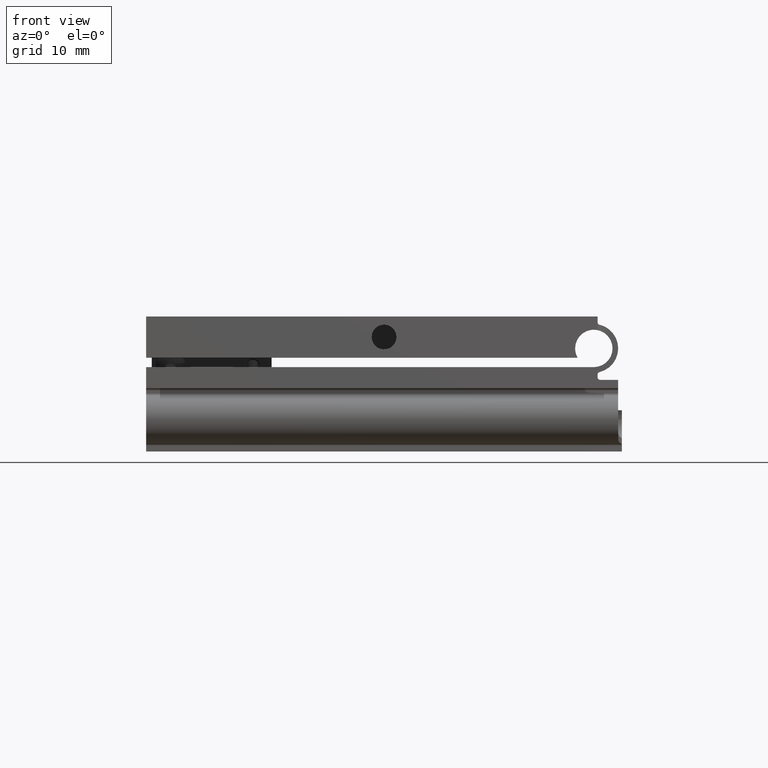
[diagram: clean part render]
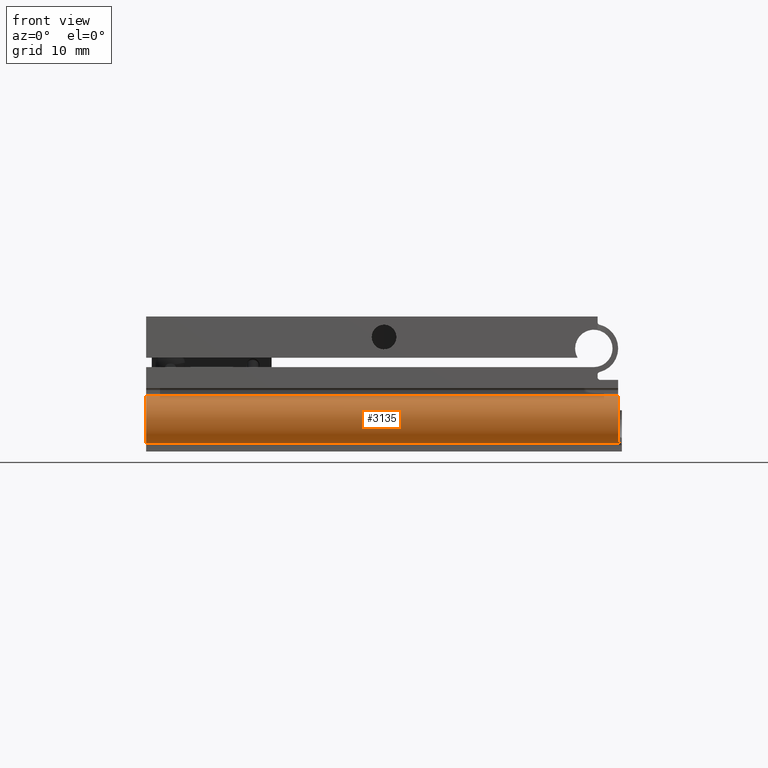
[diagram: same view with one face highlighted and labeled with its STEP entity id]
A machine part, front view. The second image highlights one B-rep face of the part: STEP entity #3135.
In plain terms, the highlighted cylindrical surface (edge-blend (fillet) strip) has radius 3.25 mm, axis along (1, -0, 0).
Its self-contained STEP definition (entity closure, byte-faithful):
#731 = CARTESIAN_POINT ( 'NONE',  ( 29.81023702222723415, -7.459889454570994616, -31.25000000000001421 ) ) ;
#737 = CYLINDRICAL_SURFACE ( 'NONE', #6212, 3.249999999999999556 ) ;
#2343 = ORIENTED_EDGE ( 'NONE', *, *, #8732, .T. ) ;
#2553 = ORIENTED_EDGE ( 'NONE', *, *, #11737, .T. ) ;
#2787 = CARTESIAN_POINT ( 'NONE',  ( 29.99999999999997158, -7.311737691489923918, -31.25000000000002132 ) ) ;
#2832 = B_SPLINE_CURVE_WITH_KNOTS ( 'NONE', 3,
 ( #7759, #12944, #13152, #3757, #731, #12142 ),
 .UNSPECIFIED., .F., .F.,
 ( 4, 2, 4 ),
 ( 0.000000000000000000, 0.0007118922461806587512, 0.001423784492361317502 ),
 .UNSPECIFIED. ) ;
#3001 = CARTESIAN_POINT ( 'NONE',  ( 28.76736111111111427, -1.591890292413145280, 31.75000000000000000 ) ) ;
#3044 = VECTOR ( 'NONE', #11092, 1000.000000000000000 ) ;
#3135 = ADVANCED_FACE ( 'NONE', ( #8910 ), #737, .T. ) ;
#3344 = ORIENTED_EDGE ( 'NONE', *, *, #13262, .T. ) ;
#3757 = CARTESIAN_POINT ( 'NONE',  ( 29.60716026191370531, -7.584533274308146389, -31.27141869312925238 ) ) ;
#4204 = VECTOR ( 'NONE', #6126, 1000.000000000000000 ) ;
#4729 = VERTEX_POINT ( 'NONE', #10278 ) ;
#5944 = CARTESIAN_POINT ( 'NONE',  ( 28.00000000000000355, -4.749999999999999112, -31.25000000000000000 ) ) ;
#6126 = DIRECTION ( 'NONE',  ( 0.000000000000000000, 0.000000000000000000, 1.000000000000000000 ) ) ;
#6212 = AXIS2_PLACEMENT_3D ( 'NONE', #10050, #10775, #9835 ) ;
#6415 = CIRCLE ( 'NONE', #6638, 3.249999999999999556 ) ;
#6428 = CARTESIAN_POINT ( 'NONE',  ( 28.76736111111111427, -7.908109707586853609, 31.75000000000000000 ) ) ;
#6638 = AXIS2_PLACEMENT_3D ( 'NONE', #11494, #12382, #8399 ) ;
#6661 = VERTEX_POINT ( 'NONE', #6428 ) ;
#6877 = DIRECTION ( 'NONE',  ( 0.000000000000000000, -1.000802005371236360E-16, 1.000000000000000000 ) ) ;
#6987 = CARTESIAN_POINT ( 'NONE',  ( 28.76736111111111427, -7.908109707586853609, 31.75000000000000000 ) ) ;
#7759 = CARTESIAN_POINT ( 'NONE',  ( 28.76736111111111427, -7.908109707586851833, -31.57500543228293566 ) ) ;
#7843 = CARTESIAN_POINT ( 'NONE',  ( 28.76736111111111427, -1.591890292413145724, 31.75000000000000000 ) ) ;
#7925 = EDGE_CURVE ( 'NONE', #4729, #12512, #8145, .T. ) ;
#8145 = LINE ( 'NONE', #3001, #4204 ) ;
#8399 = DIRECTION ( 'NONE',  ( -1.000000000000000000, 0.000000000000000000, 0.000000000000000000 ) ) ;
#8732 = EDGE_CURVE ( 'NONE', #12185, #4729, #12857, .T. ) ;
#8910 = FACE_OUTER_BOUND ( 'NONE', #10919, .T. ) ;
#9521 = ORIENTED_EDGE ( 'NONE', *, *, #7925, .T. ) ;
#9835 = DIRECTION ( 'NONE',  ( -1.000000000000000000, 0.000000000000000000, 0.000000000000000000 ) ) ;
#10050 = CARTESIAN_POINT ( 'NONE',  ( 28.00000000000000355, -4.749999999999999112, 31.75000000000000000 ) ) ;
#10278 = CARTESIAN_POINT ( 'NONE',  ( 28.76736111111111427, -1.591890292413145724, -31.25000000000000000 ) ) ;
#10748 = VERTEX_POINT ( 'NONE', #11690 ) ;
#10775 = DIRECTION ( 'NONE',  ( -0.000000000000000000, -0.000000000000000000, -1.000000000000000000 ) ) ;
#10919 = EDGE_LOOP ( 'NONE', ( #2553, #2343, #9521, #11128, #3344 ) ) ;
#11092 = DIRECTION ( 'NONE',  ( -0.000000000000000000, -0.000000000000000000, -1.000000000000000000 ) ) ;
#11128 = ORIENTED_EDGE ( 'NONE', *, *, #11846, .F. ) ;
#11494 = CARTESIAN_POINT ( 'NONE',  ( 28.00000000000000355, -4.749999999999999112, 31.75000000000000000 ) ) ;
#11546 = AXIS2_PLACEMENT_3D ( 'NONE', #5944, #6877, #13287 ) ;
#11690 = CARTESIAN_POINT ( 'NONE',  ( 28.76736111111111427, -7.908109707586851833, -31.57500543228293566 ) ) ;
#11737 = EDGE_CURVE ( 'NONE', #10748, #12185, #2832, .T. ) ;
#11846 = EDGE_CURVE ( 'NONE', #6661, #12512, #6415, .T. ) ;
#12142 = CARTESIAN_POINT ( 'NONE',  ( 29.99999999999997158, -7.311737691489923918, -31.25000000000002132 ) ) ;
#12185 = VERTEX_POINT ( 'NONE', #2787 ) ;
#12382 = DIRECTION ( 'NONE',  ( -0.000000000000000000, -0.000000000000000000, 1.000000000000000000 ) ) ;
#12512 = VERTEX_POINT ( 'NONE', #7843 ) ;
#12857 = CIRCLE ( 'NONE', #11546, 3.249999999999999556 ) ;
#12944 = CARTESIAN_POINT ( 'NONE',  ( 28.97258075952401768, -7.858245202547764485, -31.45870090299698063 ) ) ;
#13152 = CARTESIAN_POINT ( 'NONE',  ( 29.18337723049482690, -7.785977819579881221, -31.37706603401728955 ) ) ;
#13258 = LINE ( 'NONE', #6987, #3044 ) ;
#13262 = EDGE_CURVE ( 'NONE', #6661, #10748, #13258, .T. ) ;
#13287 = DIRECTION ( 'NONE',  ( 0.000000000000000000, -1.000000000000000000, 0.000000000000000000 ) ) ;